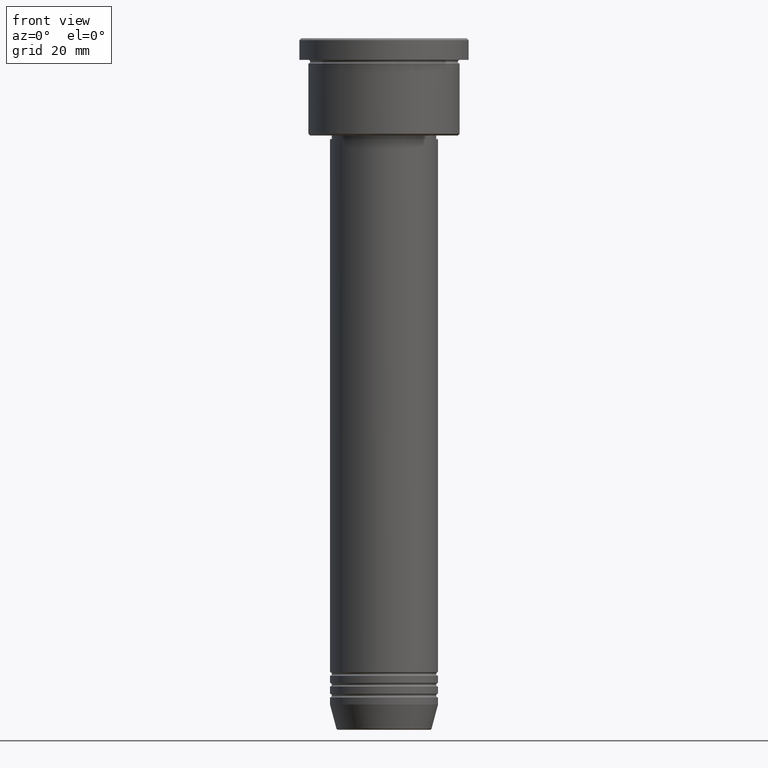
[diagram: clean part render]
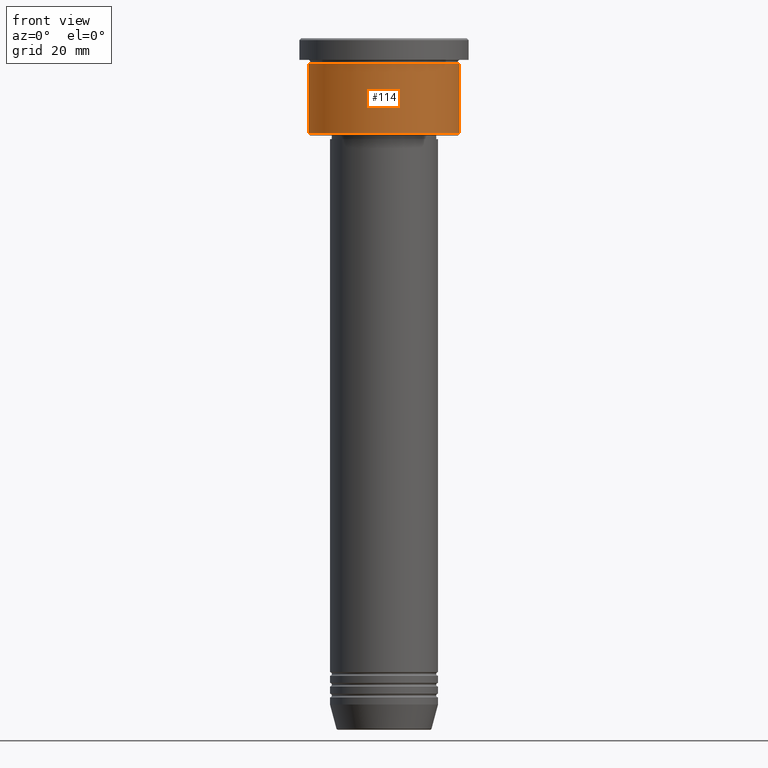
[diagram: same view with one face highlighted and labeled with its STEP entity id]
A machine part, front view. The second image highlights one B-rep face of the part: STEP entity #114.
In plain terms, the highlighted cylindrical surface (partial cylindrical patch) has radius 21 mm, axis along (-0, -0, 1).
Its self-contained STEP definition (entity closure, byte-faithful):
#31 = EDGE_CURVE ( 'NONE', #179, #785, #823, .T. ) ;
#45 = EDGE_CURVE ( 'NONE', #912, #670, #818, .T. ) ;
#56 = AXIS2_PLACEMENT_3D ( 'NONE', #776, #844, #319 ) ;
#66 = CARTESIAN_POINT ( 'NONE',  ( -21.00000000000000000, 2.571758278209441661E-15, -6.999999999999994671 ) ) ;
#87 = CARTESIAN_POINT ( 'NONE',  ( 21.00000000000000000, 0.000000000000000000, 0.000000000000000000 ) ) ;
#108 = CARTESIAN_POINT ( 'NONE',  ( -21.00000000000000000, 2.571758278209441661E-15, 0.000000000000000000 ) ) ;
#114 = ADVANCED_FACE ( 'NONE', ( #921 ), #217, .T. ) ;
#131 = AXIS2_PLACEMENT_3D ( 'NONE', #155, #546, #348 ) ;
#155 = CARTESIAN_POINT ( 'NONE',  ( 0.000000000000000000, 0.000000000000000000, -26.49999999999998934 ) ) ;
#179 = VERTEX_POINT ( 'NONE', #489 ) ;
#211 = CARTESIAN_POINT ( 'NONE',  ( 21.00000000000000000, 0.000000000000000000, -26.49999999999998934 ) ) ;
#217 = CYLINDRICAL_SURFACE ( 'NONE', #56, 21.00000000000000000 ) ;
#317 = CIRCLE ( 'NONE', #131, 21.00000000000000000 ) ;
#319 = DIRECTION ( 'NONE',  ( 1.000000000000000000, 0.000000000000000000, 0.000000000000000000 ) ) ;
#348 = DIRECTION ( 'NONE',  ( -1.000000000000000000, 0.000000000000000000, 0.000000000000000000 ) ) ;
#380 = VECTOR ( 'NONE', #1087, 1000.000000000000000 ) ;
#382 = DIRECTION ( 'NONE',  ( -0.000000000000000000, -0.000000000000000000, 1.000000000000000000 ) ) ;
#438 = ORIENTED_EDGE ( 'NONE', *, *, #754, .T. ) ;
#489 = CARTESIAN_POINT ( 'NONE',  ( -21.00000000000000000, 2.571758278209441661E-15, -26.49999999999998934 ) ) ;
#498 = ORIENTED_EDGE ( 'NONE', *, *, #701, .F. ) ;
#546 = DIRECTION ( 'NONE',  ( -0.000000000000000000, -0.000000000000000000, 1.000000000000000000 ) ) ;
#607 = DIRECTION ( 'NONE',  ( 1.000000000000000000, 0.000000000000000000, 0.000000000000000000 ) ) ;
#636 = EDGE_LOOP ( 'NONE', ( #791, #438, #1121, #498 ) ) ;
#670 = VERTEX_POINT ( 'NONE', #952 ) ;
#684 = CIRCLE ( 'NONE', #983, 21.00000000000000000 ) ;
#701 = EDGE_CURVE ( 'NONE', #785, #670, #684, .T. ) ;
#754 = EDGE_CURVE ( 'NONE', #179, #912, #317, .T. ) ;
#776 = CARTESIAN_POINT ( 'NONE',  ( 0.000000000000000000, 0.000000000000000000, 0.000000000000000000 ) ) ;
#785 = VERTEX_POINT ( 'NONE', #66 ) ;
#791 = ORIENTED_EDGE ( 'NONE', *, *, #31, .F. ) ;
#818 = LINE ( 'NONE', #87, #820 ) ;
#820 = VECTOR ( 'NONE', #382, 1000.000000000000000 ) ;
#823 = LINE ( 'NONE', #108, #380 ) ;
#844 = DIRECTION ( 'NONE',  ( -0.000000000000000000, -0.000000000000000000, 1.000000000000000000 ) ) ;
#872 = CARTESIAN_POINT ( 'NONE',  ( 0.000000000000000000, 0.000000000000000000, -6.999999999999994671 ) ) ;
#912 = VERTEX_POINT ( 'NONE', #211 ) ;
#921 = FACE_OUTER_BOUND ( 'NONE', #636, .T. ) ;
#952 = CARTESIAN_POINT ( 'NONE',  ( 21.00000000000000000, 0.000000000000000000, -6.999999999999994671 ) ) ;
#983 = AXIS2_PLACEMENT_3D ( 'NONE', #872, #1055, #607 ) ;
#1055 = DIRECTION ( 'NONE',  ( -0.000000000000000000, -0.000000000000000000, 1.000000000000000000 ) ) ;
#1087 = DIRECTION ( 'NONE',  ( -0.000000000000000000, -0.000000000000000000, 1.000000000000000000 ) ) ;
#1121 = ORIENTED_EDGE ( 'NONE', *, *, #45, .T. ) ;